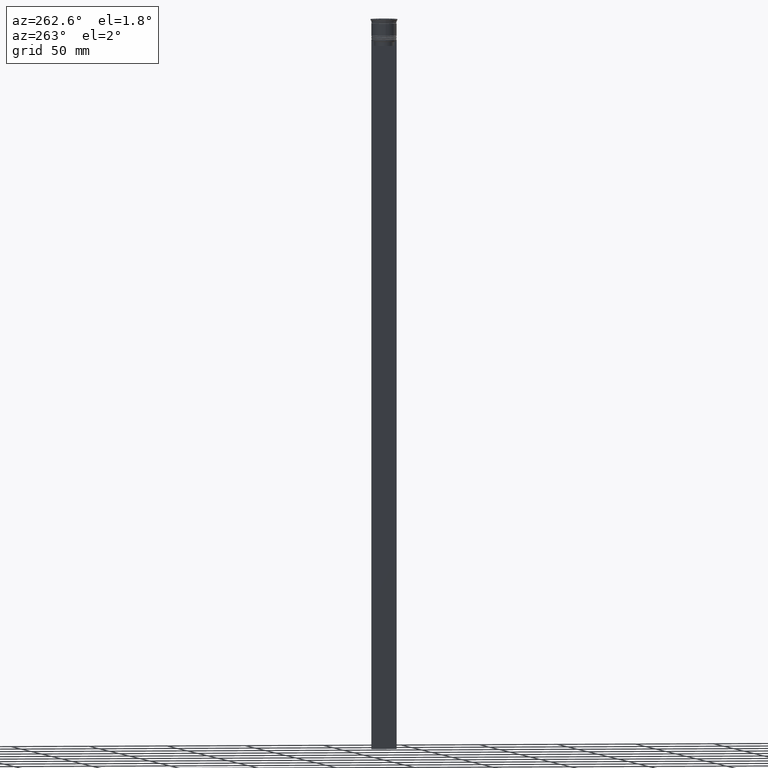
[diagram: clean part render]
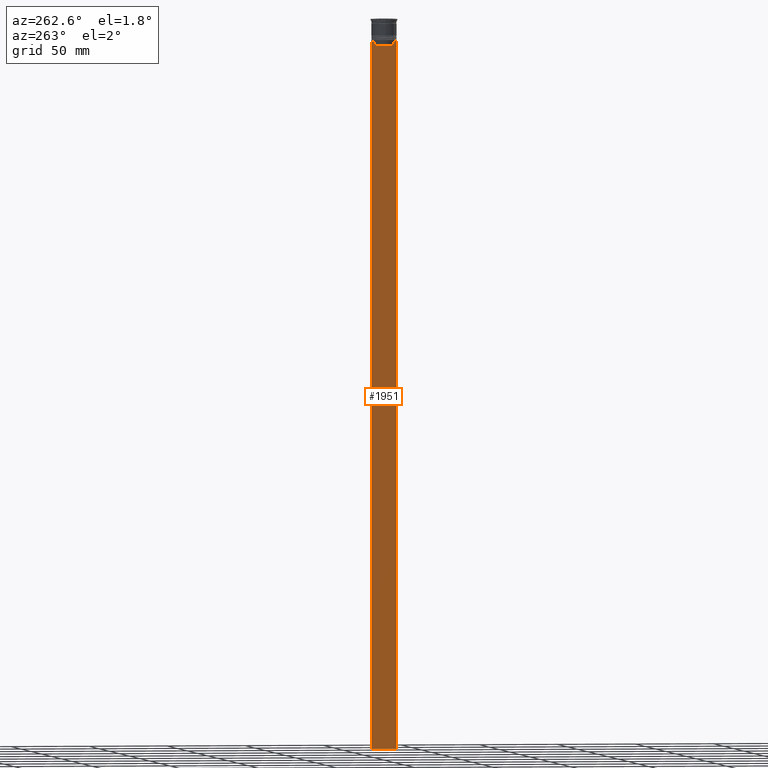
[diagram: same view with one face highlighted and labeled with its STEP entity id]
A machine part, auxiliary view. The second image highlights one B-rep face of the part: STEP entity #1951.
In plain terms, the highlighted planar face has unit normal (-1, 0, 0).
Its self-contained STEP definition (entity closure, byte-faithful):
#30 = VECTOR ( 'NONE', #929, 1000.000000000000000 ) ;
#74 = DIRECTION ( 'NONE',  ( -1.000000000000000000, 0.000000000000000000, 0.000000000000000000 ) ) ;
#89 = VECTOR ( 'NONE', #1308, 1000.000000000000000 ) ;
#92 = LINE ( 'NONE', #1271, #1017 ) ;
#109 = EDGE_CURVE ( 'NONE', #1559, #1561, #2079, .T. ) ;
#119 = VERTEX_POINT ( 'NONE', #188 ) ;
#143 = CARTESIAN_POINT ( 'NONE',  ( -0.4999999999999998890, 7.999999999999996447, 2.031219541881394530 ) ) ;
#144 = ORIENTED_EDGE ( 'NONE', *, *, #2199, .F. ) ;
#188 = CARTESIAN_POINT ( 'NONE',  ( -0.4999999999999998890, -6.881860213634098500, -14.00000000000000178 ) ) ;
#205 = ORIENTED_EDGE ( 'NONE', *, *, #1949, .F. ) ;
#220 = CARTESIAN_POINT ( 'NONE',  ( -0.4999999999999998890, -6.380438856379708312, -17.00000000000000000 ) ) ;
#248 = DIRECTION ( 'NONE',  ( 0.000000000000000000, -1.000000000000000000, 0.000000000000000000 ) ) ;
#324 = ORIENTED_EDGE ( 'NONE', *, *, #109, .F. ) ;
#343 = EDGE_CURVE ( 'NONE', #845, #1386, #1277, .T. ) ;
#396 = VECTOR ( 'NONE', #1063, 1000.000000000000000 ) ;
#408 = CARTESIAN_POINT ( 'NONE',  ( -0.4999999999999998890, 6.380438856379708312, -14.50000000000000000 ) ) ;
#418 = CARTESIAN_POINT ( 'NONE',  ( -0.4999999999999998890, 6.380438856379708312, 0.000000000000000000 ) ) ;
#430 = DIRECTION ( 'NONE',  ( 0.000000000000000000, 0.000000000000000000, -1.000000000000000000 ) ) ;
#434 = CARTESIAN_POINT ( 'NONE',  ( -0.4999999999999998890, 7.999999999999996447, -464.0000000000000000 ) ) ;
#446 = EDGE_CURVE ( 'NONE', #585, #1559, #748, .T. ) ;
#466 = VERTEX_POINT ( 'NONE', #1734 ) ;
#564 = EDGE_CURVE ( 'NONE', #827, #466, #1960, .T. ) ;
#574 = VECTOR ( 'NONE', #2235, 1000.000000000000000 ) ;
#585 = VERTEX_POINT ( 'NONE', #1191 ) ;
#607 = ORIENTED_EDGE ( 'NONE', *, *, #1904, .F. ) ;
#654 = DIRECTION ( 'NONE',  ( 0.000000000000000000, -1.000000000000000000, 0.000000000000000000 ) ) ;
#673 = B_SPLINE_CURVE_WITH_KNOTS ( 'NONE', 3,
 ( #957, #1276, #1673, #1732 ),
 .UNSPECIFIED., .F., .F.,
 ( 4, 4 ),
 ( 0.02996184199614749730, 0.03067452609193703841 ),
 .UNSPECIFIED. ) ;
#748 = LINE ( 'NONE', #958, #1968 ) ;
#795 = PLANE ( 'NONE',  #1252 ) ;
#827 = VERTEX_POINT ( 'NONE', #408 ) ;
#845 = VERTEX_POINT ( 'NONE', #2292 ) ;
#853 = CARTESIAN_POINT ( 'NONE',  ( -0.4999999999999998890, -8.000000000000003553, -464.0000000000000000 ) ) ;
#890 = DIRECTION ( 'NONE',  ( 0.000000000000000000, 0.000000000000000000, -1.000000000000000000 ) ) ;
#900 = DIRECTION ( 'NONE',  ( 0.000000000000000000, -1.000000000000000000, 0.000000000000000000 ) ) ;
#929 = DIRECTION ( 'NONE',  ( 0.000000000000000000, -1.000000000000000000, 0.000000000000000000 ) ) ;
#957 = CARTESIAN_POINT ( 'NONE',  ( -0.4999999999999998890, -6.380438856379708312, -14.50000000000000000 ) ) ;
#958 = CARTESIAN_POINT ( 'NONE',  ( -0.4999999999999998890, -8.000000000000003553, -14.00000000000000178 ) ) ;
#983 = B_SPLINE_CURVE_WITH_KNOTS ( 'NONE', 3,
 ( #1153, #1703, #1920, #1686 ),
 .UNSPECIFIED., .F., .F.,
 ( 4, 4 ),
 ( 0.01172465562756038263, 0.01243276816391822651 ),
 .UNSPECIFIED. ) ;
#1017 = VECTOR ( 'NONE', #654, 1000.000000000000000 ) ;
#1058 = VERTEX_POINT ( 'NONE', #1170 ) ;
#1063 = DIRECTION ( 'NONE',  ( 0.000000000000000000, 1.000000000000000000, 0.000000000000000000 ) ) ;
#1089 = ORIENTED_EDGE ( 'NONE', *, *, #2135, .F. ) ;
#1121 = CARTESIAN_POINT ( 'NONE',  ( -0.4999999999999998890, 7.884161337770806632, -14.00000000000000178 ) ) ;
#1153 = CARTESIAN_POINT ( 'NONE',  ( -0.4999999999999998890, 6.881860213634098500, -14.00000000000000178 ) ) ;
#1170 = CARTESIAN_POINT ( 'NONE',  ( -0.4999999999999998890, 6.881860213634098500, -14.00000000000000178 ) ) ;
#1191 = CARTESIAN_POINT ( 'NONE',  ( -0.4999999999999998890, -7.884161337770806632, -14.00000000000000178 ) ) ;
#1201 = LINE ( 'NONE', #1377, #2352 ) ;
#1215 = EDGE_CURVE ( 'NONE', #2246, #2094, #1462, .T. ) ;
#1241 = CARTESIAN_POINT ( 'NONE',  ( -0.4999999999999998890, -8.000000000000003553, -464.0000000000000000 ) ) ;
#1252 = AXIS2_PLACEMENT_3D ( 'NONE', #2166, #74, #1568 ) ;
#1271 = CARTESIAN_POINT ( 'NONE',  ( -0.4999999999999998890, 6.399999999999999467, -17.00000000000000000 ) ) ;
#1276 = CARTESIAN_POINT ( 'NONE',  ( -0.4999999999999998890, -6.547597841511246131, -14.33335192438652328 ) ) ;
#1277 = LINE ( 'NONE', #143, #2474 ) ;
#1308 = DIRECTION ( 'NONE',  ( 0.000000000000000000, 0.000000000000000000, -1.000000000000000000 ) ) ;
#1347 = ORIENTED_EDGE ( 'NONE', *, *, #564, .F. ) ;
#1377 = CARTESIAN_POINT ( 'NONE',  ( -0.4999999999999998890, -8.000000000000003553, -14.00000000000000178 ) ) ;
#1378 = EDGE_LOOP ( 'NONE', ( #2217, #205, #1089, #1483, #2184, #324, #1582, #1435, #607, #1522, #144, #1347 ) ) ;
#1386 = VERTEX_POINT ( 'NONE', #434 ) ;
#1404 = CARTESIAN_POINT ( 'NONE',  ( -0.4999999999999998890, -6.380438856379708312, -14.50000000000000000 ) ) ;
#1431 = LINE ( 'NONE', #2439, #1457 ) ;
#1435 = ORIENTED_EDGE ( 'NONE', *, *, #2033, .F. ) ;
#1457 = VECTOR ( 'NONE', #900, 1000.000000000000000 ) ;
#1462 = LINE ( 'NONE', #1653, #574 ) ;
#1483 = ORIENTED_EDGE ( 'NONE', *, *, #343, .T. ) ;
#1522 = ORIENTED_EDGE ( 'NONE', *, *, #1215, .F. ) ;
#1538 = LINE ( 'NONE', #2062, #30 ) ;
#1559 = VERTEX_POINT ( 'NONE', #1817 ) ;
#1561 = VERTEX_POINT ( 'NONE', #853 ) ;
#1567 = EDGE_CURVE ( 'NONE', #1561, #1386, #2200, .T. ) ;
#1568 = DIRECTION ( 'NONE',  ( 0.000000000000000000, 0.000000000000000000, 1.000000000000000000 ) ) ;
#1582 = ORIENTED_EDGE ( 'NONE', *, *, #446, .F. ) ;
#1649 = VECTOR ( 'NONE', #430, 1000.000000000000000 ) ;
#1653 = CARTESIAN_POINT ( 'NONE',  ( -0.4999999999999998890, -6.380438856379708312, 0.000000000000000000 ) ) ;
#1673 = CARTESIAN_POINT ( 'NONE',  ( -0.4999999999999998890, -6.714736947305992132, -14.16668390685738999 ) ) ;
#1686 = CARTESIAN_POINT ( 'NONE',  ( -0.4999999999999998890, 6.380438856379708312, -14.50000000000000000 ) ) ;
#1703 = CARTESIAN_POINT ( 'NONE',  ( -0.4999999999999998890, 6.714736947114692711, -14.16668390704818847 ) ) ;
#1732 = CARTESIAN_POINT ( 'NONE',  ( -0.4999999999999998890, -6.881860213634098500, -14.00000000000000178 ) ) ;
#1734 = CARTESIAN_POINT ( 'NONE',  ( -0.4999999999999998890, 6.380438856379708312, -17.00000000000000000 ) ) ;
#1744 = DIRECTION ( 'NONE',  ( 0.000000000000000000, -1.000000000000000000, 0.000000000000000000 ) ) ;
#1767 = FACE_OUTER_BOUND ( 'NONE', #1378, .T. ) ;
#1817 = CARTESIAN_POINT ( 'NONE',  ( -0.4999999999999998890, -8.000000000000003553, -14.00000000000000178 ) ) ;
#1878 = EDGE_CURVE ( 'NONE', #1058, #827, #983, .T. ) ;
#1898 = CARTESIAN_POINT ( 'NONE',  ( -0.4999999999999998890, -8.000000000000003553, 2.031219541881394530 ) ) ;
#1904 = EDGE_CURVE ( 'NONE', #2094, #119, #673, .T. ) ;
#1920 = CARTESIAN_POINT ( 'NONE',  ( -0.4999999999999998890, 6.547597841304911626, -14.33335192459222718 ) ) ;
#1949 = EDGE_CURVE ( 'NONE', #2342, #1058, #1201, .T. ) ;
#1951 = ADVANCED_FACE ( 'NONE', ( #1767 ), #795, .T. ) ;
#1960 = LINE ( 'NONE', #418, #1649 ) ;
#1968 = VECTOR ( 'NONE', #1744, 1000.000000000000000 ) ;
#2033 = EDGE_CURVE ( 'NONE', #119, #585, #1538, .T. ) ;
#2062 = CARTESIAN_POINT ( 'NONE',  ( -0.4999999999999998890, -8.000000000000003553, -14.00000000000000178 ) ) ;
#2079 = LINE ( 'NONE', #1898, #89 ) ;
#2094 = VERTEX_POINT ( 'NONE', #1404 ) ;
#2135 = EDGE_CURVE ( 'NONE', #845, #2342, #1431, .T. ) ;
#2166 = CARTESIAN_POINT ( 'NONE',  ( -0.4999999999999998890, -8.000000000000003553, 2.031219541881394530 ) ) ;
#2184 = ORIENTED_EDGE ( 'NONE', *, *, #1567, .F. ) ;
#2199 = EDGE_CURVE ( 'NONE', #466, #2246, #92, .T. ) ;
#2200 = LINE ( 'NONE', #1241, #396 ) ;
#2217 = ORIENTED_EDGE ( 'NONE', *, *, #1878, .F. ) ;
#2235 = DIRECTION ( 'NONE',  ( -0.000000000000000000, -0.000000000000000000, 1.000000000000000000 ) ) ;
#2246 = VERTEX_POINT ( 'NONE', #220 ) ;
#2292 = CARTESIAN_POINT ( 'NONE',  ( -0.4999999999999998890, 7.999999999999996447, -14.00000000000000178 ) ) ;
#2342 = VERTEX_POINT ( 'NONE', #1121 ) ;
#2352 = VECTOR ( 'NONE', #248, 1000.000000000000000 ) ;
#2439 = CARTESIAN_POINT ( 'NONE',  ( -0.4999999999999998890, -8.000000000000003553, -14.00000000000000178 ) ) ;
#2474 = VECTOR ( 'NONE', #890, 1000.000000000000000 ) ;